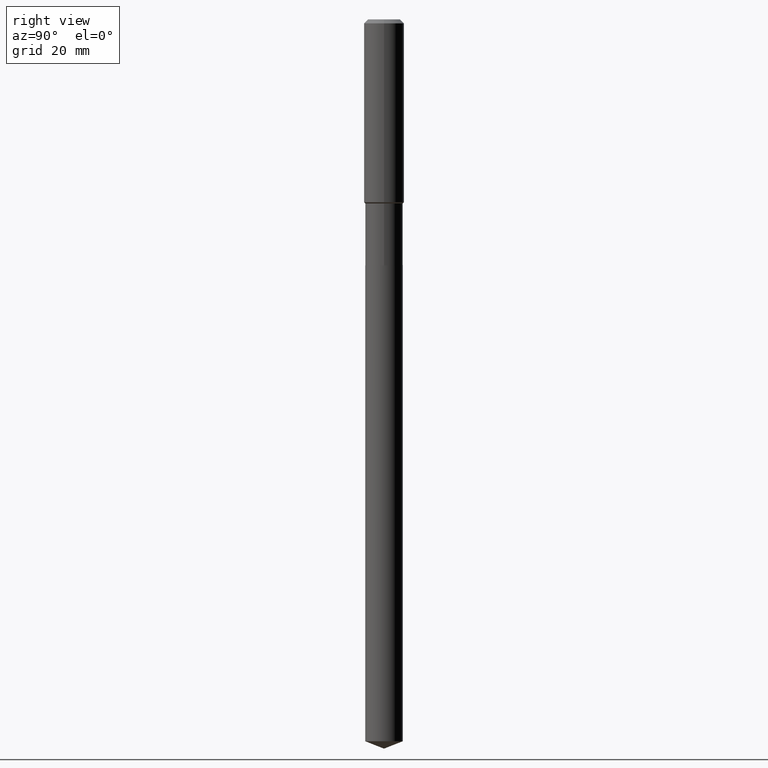
[diagram: clean part render]
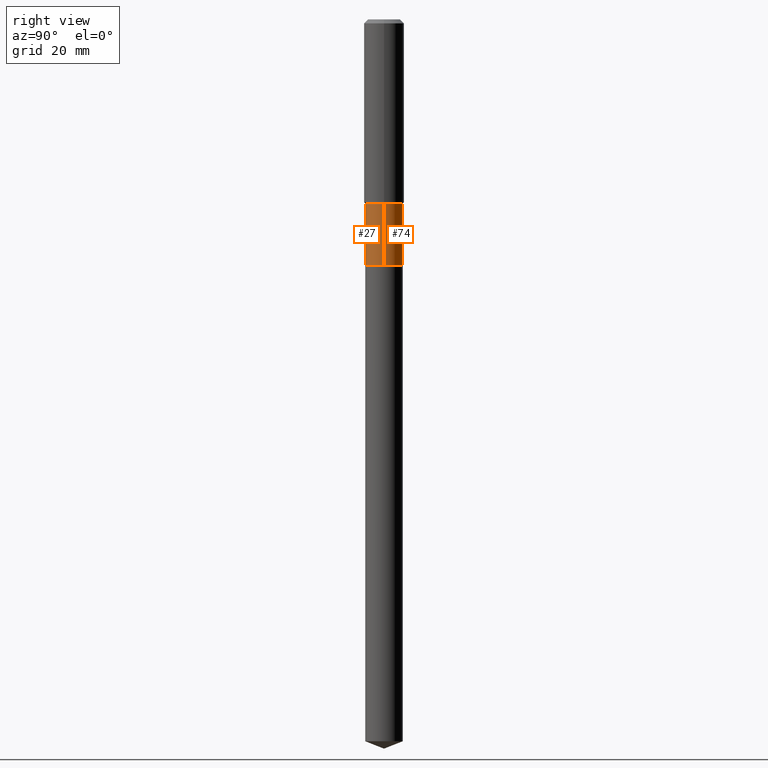
[diagram: same view with one multi-face feature highlighted, each face labeled with its STEP entity id]
A machine part, right view. The highlighted faces form ONE feature: a constant-radius fillet chain: 2 tangent blend faces with common blend radius 3.7503 mm. The faces share edges in the B-rep.
Their STEP definitions:
[1] entity #27 (Cylinder):
#6 = CARTESIAN_POINT ( 'NONE',  ( 0.1476499999999999480, -6.099617898958972494E-15, -1.451700000000000212 ) ) ;
#15 = CARTESIAN_POINT ( 'NONE',  ( 0.1476500000000000312, -7.799271014707815422E-15, -1.938499999999999890 ) ) ;
#16 = CIRCLE ( 'NONE', #474, 0.1476499999999999480 ) ;
#27 = ADVANCED_FACE ( 'NONE', ( #165 ), #167, .T. ) ;
#35 = VERTEX_POINT ( 'NONE', #303 ) ;
#45 = VERTEX_POINT ( 'NONE', #91 ) ;
#68 = DIRECTION ( 'NONE',  ( 1.000000000000000000, -6.982962677686269077E-15, 0.000000000000000000 ) ) ;
#82 = EDGE_LOOP ( 'NONE', ( #124, #85, #122, #264 ) ) ;
#85 = ORIENTED_EDGE ( 'NONE', *, *, #90, .T. ) ;
#90 = EDGE_CURVE ( 'NONE', #45, #335, #379, .T. ) ;
#91 = CARTESIAN_POINT ( 'NONE',  ( -0.1476500000000000312, -4.869293668123228136E-15, -1.938499999999999890 ) ) ;
#101 = CARTESIAN_POINT ( 'NONE',  ( 4.740541280789886638E-29, -6.768236575347436760E-15, -1.938499999999999890 ) ) ;
#122 = ORIENTED_EDGE ( 'NONE', *, *, #184, .T. ) ;
#124 = ORIENTED_EDGE ( 'NONE', *, *, #444, .F. ) ;
#163 = CARTESIAN_POINT ( 'NONE',  ( 0.1476500000000000035, -1.031034439360377281E-15, 7.199675009462699686E-30 ) ) ;
#165 = FACE_OUTER_BOUND ( 'NONE', #82, .T. ) ;
#167 = CYLINDRICAL_SURFACE ( 'NONE', #317, 0.1476500000000000035 ) ;
#184 = EDGE_CURVE ( 'NONE', #335, #193, #220, .T. ) ;
#185 = CARTESIAN_POINT ( 'NONE',  ( 3.550087065938963702E-29, -5.068583459598595410E-15, -1.451700000000000212 ) ) ;
#193 = VERTEX_POINT ( 'NONE', #6 ) ;
#204 = EDGE_CURVE ( 'NONE', #35, #193, #16, .T. ) ;
#220 = LINE ( 'NONE', #163, #240 ) ;
#235 = CARTESIAN_POINT ( 'NONE',  ( 0.000000000000000000, 0.000000000000000000, 0.000000000000000000 ) ) ;
#236 = DIRECTION ( 'NONE',  ( -2.445468806185136597E-29, 3.491481338843145583E-15, 1.000000000000000000 ) ) ;
#237 = DIRECTION ( 'NONE',  ( -2.445468806185136597E-29, 3.491481338843145583E-15, 1.000000000000000000 ) ) ;
#240 = VECTOR ( 'NONE', #302, 39.37007874015748143 ) ;
#254 = CARTESIAN_POINT ( 'NONE',  ( -0.1476500000000000035, 1.049116349349787949E-15, -7.262807660761367809E-30 ) ) ;
#256 = DIRECTION ( 'NONE',  ( 1.000000000000000000, -6.982962677686266711E-15, 0.000000000000000000 ) ) ;
#264 = ORIENTED_EDGE ( 'NONE', *, *, #204, .F. ) ;
#289 = AXIS2_PLACEMENT_3D ( 'NONE', #101, #322, #68 ) ;
#302 = DIRECTION ( 'NONE',  ( -2.445468806185136877E-29, 3.491481338843145188E-15, 1.000000000000000000 ) ) ;
#303 = CARTESIAN_POINT ( 'NONE',  ( -0.1476499999999999480, -4.869293668123228136E-15, -1.451700000000000212 ) ) ;
#317 = AXIS2_PLACEMENT_3D ( 'NONE', #235, #237, #354 ) ;
#322 = DIRECTION ( 'NONE',  ( -2.445468806185136597E-29, 3.491481338843145583E-15, 1.000000000000000000 ) ) ;
#335 = VERTEX_POINT ( 'NONE', #15 ) ;
#354 = DIRECTION ( 'NONE',  ( 1.000000000000000000, -6.982962677686266711E-15, 4.876176775795935793E-29 ) ) ;
#373 = LINE ( 'NONE', #254, #450 ) ;
#379 = CIRCLE ( 'NONE', #289, 0.1476500000000000312 ) ;
#444 = EDGE_CURVE ( 'NONE', #45, #35, #373, .T. ) ;
#450 = VECTOR ( 'NONE', #487, 39.37007874015748143 ) ;
#474 = AXIS2_PLACEMENT_3D ( 'NONE', #185, #236, #256 ) ;
#487 = DIRECTION ( 'NONE',  ( -2.445468806185136877E-29, 3.491481338843145188E-15, 1.000000000000000000 ) ) ;
[2] entity #74 (Cylinder):
#6 = CARTESIAN_POINT ( 'NONE',  ( 0.1476499999999999480, -6.099617898958972494E-15, -1.451700000000000212 ) ) ;
#15 = CARTESIAN_POINT ( 'NONE',  ( 0.1476500000000000312, -7.799271014707815422E-15, -1.938499999999999890 ) ) ;
#18 = CARTESIAN_POINT ( 'NONE',  ( 3.550087065938963702E-29, -5.068583459598595410E-15, -1.451700000000000212 ) ) ;
#19 = DIRECTION ( 'NONE',  ( -2.445468806185136597E-29, 3.491481338843145583E-15, 1.000000000000000000 ) ) ;
#35 = VERTEX_POINT ( 'NONE', #303 ) ;
#40 = EDGE_CURVE ( 'NONE', #193, #35, #275, .T. ) ;
#45 = VERTEX_POINT ( 'NONE', #91 ) ;
#47 = DIRECTION ( 'NONE',  ( -2.445468806185136597E-29, 3.491481338843145583E-15, 1.000000000000000000 ) ) ;
#65 = DIRECTION ( 'NONE',  ( 1.000000000000000000, -6.982962677686266711E-15, 4.876176775795935793E-29 ) ) ;
#74 = ADVANCED_FACE ( 'NONE', ( #198 ), #88, .T. ) ;
#88 = CYLINDRICAL_SURFACE ( 'NONE', #381, 0.1476500000000000035 ) ;
#91 = CARTESIAN_POINT ( 'NONE',  ( -0.1476500000000000312, -4.869293668123228136E-15, -1.938499999999999890 ) ) ;
#92 = DIRECTION ( 'NONE',  ( 1.000000000000000000, -6.982962677686269077E-15, 0.000000000000000000 ) ) ;
#137 = CIRCLE ( 'NONE', #341, 0.1476500000000000312 ) ;
#158 = ORIENTED_EDGE ( 'NONE', *, *, #40, .F. ) ;
#163 = CARTESIAN_POINT ( 'NONE',  ( 0.1476500000000000035, -1.031034439360377281E-15, 7.199675009462699686E-30 ) ) ;
#184 = EDGE_CURVE ( 'NONE', #335, #193, #220, .T. ) ;
#193 = VERTEX_POINT ( 'NONE', #6 ) ;
#198 = FACE_OUTER_BOUND ( 'NONE', #372, .T. ) ;
#220 = LINE ( 'NONE', #163, #240 ) ;
#240 = VECTOR ( 'NONE', #302, 39.37007874015748143 ) ;
#254 = CARTESIAN_POINT ( 'NONE',  ( -0.1476500000000000035, 1.049116349349787949E-15, -7.262807660761367809E-30 ) ) ;
#261 = AXIS2_PLACEMENT_3D ( 'NONE', #18, #277, #314 ) ;
#275 = CIRCLE ( 'NONE', #261, 0.1476499999999999480 ) ;
#277 = DIRECTION ( 'NONE',  ( -2.445468806185136597E-29, 3.491481338843145583E-15, 1.000000000000000000 ) ) ;
#302 = DIRECTION ( 'NONE',  ( -2.445468806185136877E-29, 3.491481338843145188E-15, 1.000000000000000000 ) ) ;
#303 = CARTESIAN_POINT ( 'NONE',  ( -0.1476499999999999480, -4.869293668123228136E-15, -1.451700000000000212 ) ) ;
#314 = DIRECTION ( 'NONE',  ( 1.000000000000000000, -6.982962677686266711E-15, 0.000000000000000000 ) ) ;
#335 = VERTEX_POINT ( 'NONE', #15 ) ;
#341 = AXIS2_PLACEMENT_3D ( 'NONE', #443, #19, #92 ) ;
#372 = EDGE_LOOP ( 'NONE', ( #427, #489, #158, #392 ) ) ;
#373 = LINE ( 'NONE', #254, #450 ) ;
#381 = AXIS2_PLACEMENT_3D ( 'NONE', #385, #47, #65 ) ;
#385 = CARTESIAN_POINT ( 'NONE',  ( 0.000000000000000000, 0.000000000000000000, 0.000000000000000000 ) ) ;
#392 = ORIENTED_EDGE ( 'NONE', *, *, #184, .F. ) ;
#427 = ORIENTED_EDGE ( 'NONE', *, *, #461, .T. ) ;
#443 = CARTESIAN_POINT ( 'NONE',  ( 4.740541280789886638E-29, -6.768236575347436760E-15, -1.938499999999999890 ) ) ;
#444 = EDGE_CURVE ( 'NONE', #45, #35, #373, .T. ) ;
#450 = VECTOR ( 'NONE', #487, 39.37007874015748143 ) ;
#461 = EDGE_CURVE ( 'NONE', #335, #45, #137, .T. ) ;
#487 = DIRECTION ( 'NONE',  ( -2.445468806185136877E-29, 3.491481338843145188E-15, 1.000000000000000000 ) ) ;
#489 = ORIENTED_EDGE ( 'NONE', *, *, #444, .T. ) ;